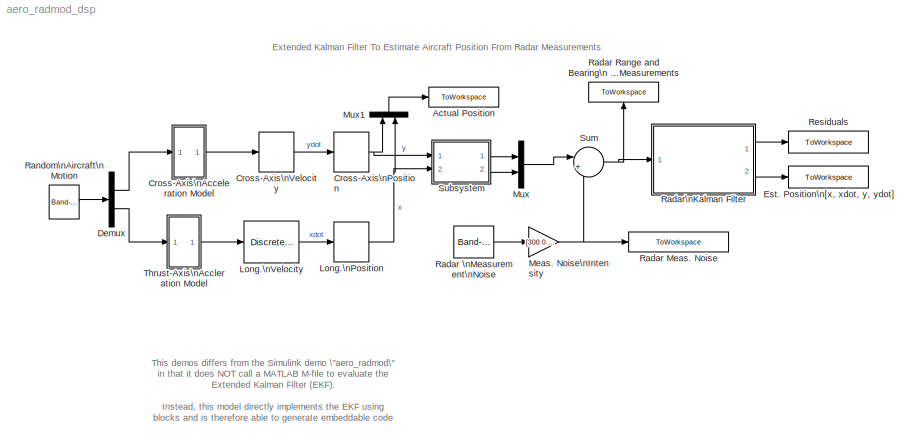
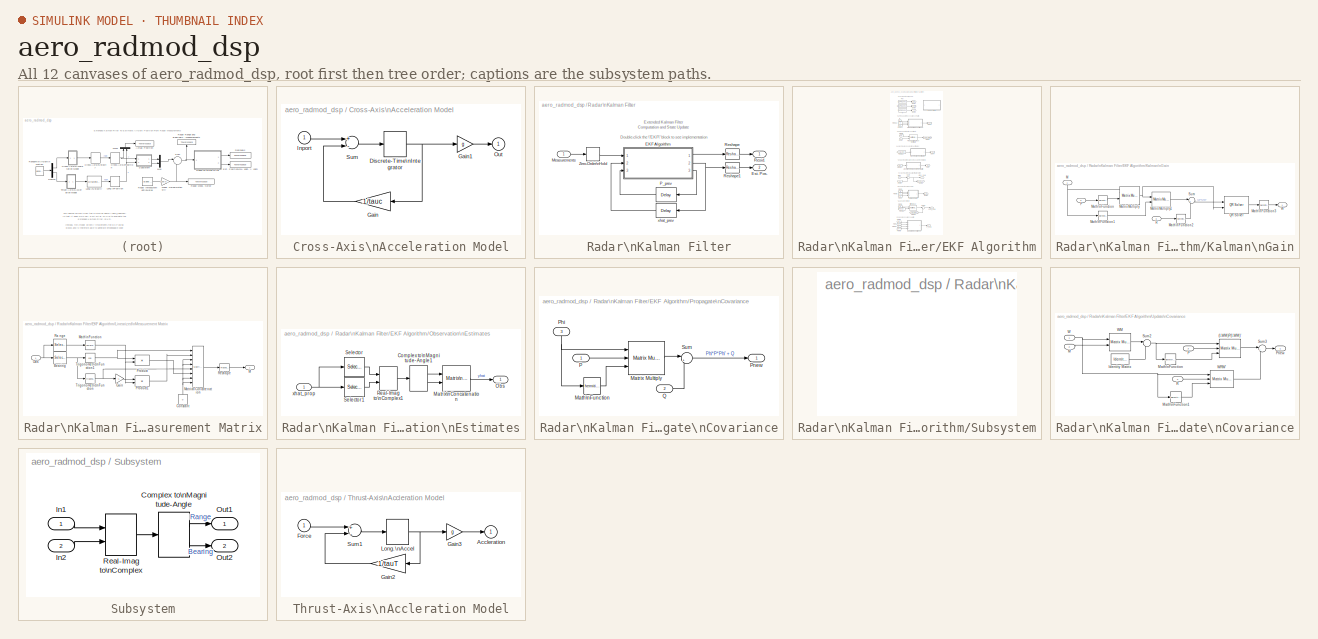
[diagram: thumbnail index - all 12 canvases of the model, root first then tree order]
MODEL aero_radmod_dsp
KIND model
CONFIG PreLoadFcn = aero_raddat;
CONFIG StopFcn = aero_radplot;
BLOCK [ToWorkspace] Actual Position
  MaxDataPoints = inf
  SaveFormat = Array
  VariableName = XYCoords
BLOCK [SubSystem] Cross-Axis\nAcceleration Model
  MinAlgLoopOccurrences = off
  Ports = [1, 1]
  PropExecContextAcrossSSBoundary = on
  RTWSystemCode = Auto
  ShowPortLabels = off
  TreatAsAtomicUnit = off
BLOCK [DiscreteIntegrator] Cross-Axis\nAcceleration Model/Discrete-Time\nIntegrator
  ExternalReset = none
  ICPrevOutput = DiscIntNeverNeededParam
  ICPrevScaledInput = DiscIntNeverNeededParam
  InitialConditionSource = internal
  IntegratorMethod = Integration: Forward Euler
  Ports = [1, 1]
  SampleTime = -1
BLOCK [Gain] Cross-Axis\nAcceleration Model/Gain
  Gain = 1/tauc
BLOCK [Gain] Cross-Axis\nAcceleration Model/Gain1
  Gain = g
BLOCK [Inport] Cross-Axis\nAcceleration Model/Inport
  IconDisplay = Port number
  LatchInput = off
BLOCK [Outport] Cross-Axis\nAcceleration Model/Out
  IconDisplay = Port number
  InitialOutput = 0
BLOCK [Sum] Cross-Axis\nAcceleration Model/Sum
  Inputs = +-
  Ports = [2, 1]
BLOCK [DiscreteIntegrator] Cross-Axis\nPosition
  ExternalReset = none
  ICPrevOutput = DiscIntNeverNeededParam
  ICPrevScaledInput = DiscIntNeverNeededParam
  InitialConditionSource = internal
  IntegratorMethod = Integration: Forward Euler
  Ports = [1, 1]
  SampleTime = -1
BLOCK [DiscreteIntegrator] Cross-Axis\nVelocity
  ExternalReset = none
  ICPrevOutput = DiscIntNeverNeededParam
  ICPrevScaledInput = DiscIntNeverNeededParam
  InitialConditionSource = internal
  IntegratorMethod = Integration: Forward Euler
  Ports = [1, 1]
  SampleTime = -1
BLOCK [Demux] Demux
  Outputs = 2
  Ports = [1, 2]
BLOCK [ToWorkspace] Est. Position\n[x, xdot, y, ydot]
  MaxDataPoints = inf
  SampleTime = -1
  SaveFormat = Array
  VariableName = X_hat
BLOCK [DiscreteIntegrator] Long.\nPosition
  ExternalReset = none
  ICPrevOutput = DiscIntNeverNeededParam
  ICPrevScaledInput = DiscIntNeverNeededParam
  InitialConditionSource = internal
  IntegratorMethod = Integration: Forward Euler
  Ports = [1, 1]
  SampleTime = -1
BLOCK [DiscreteIntegrator] Long.\nVelocity
  ExternalReset = none
  ICPrevOutput = DiscIntNeverNeededParam
  ICPrevScaledInput = DiscIntNeverNeededParam
  InitialCondition = Speed
  InitialConditionSource = internal
  IntegratorMethod = Integration: Forward Euler
  Ports = [1, 1]
  SampleTime = .1
BLOCK [Gain] Meas. Noise\nIntensity
  Gain = [300 0.01]
BLOCK [Mux] Mux
  DisplayOption = bar
  Inputs = 2
  Ports = [2, 1]
BLOCK [Mux] Mux1
  DisplayOption = bar
  Inputs = 2
  Ports = [2, 1]
BLOCK [ToWorkspace] Radar Meas. Noise
  MaxDataPoints = inf
  SaveFormat = Array
  VariableName = Measurement_noise
BLOCK [ToWorkspace] Radar Range and Bearing\n Angle Measurements
  MaxDataPoints = inf
  SampleTime = -1
  SaveFormat = Array
  VariableName = PolarCoords
BLOCK [Reference] Radar \nMeasurement\nNoise  REF=simulink/Sources/Band-Limited\nWhite Noise
  Cov = [1 1]
  Ports = [0, 1]
  ShowPortLabels = on
  SourceBlock = simulink/Sources/Band-Limited\nWhite Noise
  SourceType = Band-Limited White Noise.
  Ts = 0.1
  VectorParams1D = on
  seed = [52341 62341]
BLOCK [SubSystem] Radar\nKalman Filter
  MinAlgLoopOccurrences = off
  Ports = [1, 2]
  PropExecContextAcrossSSBoundary = on
  RTWSystemCode = Auto
  TreatAsAtomicUnit = off
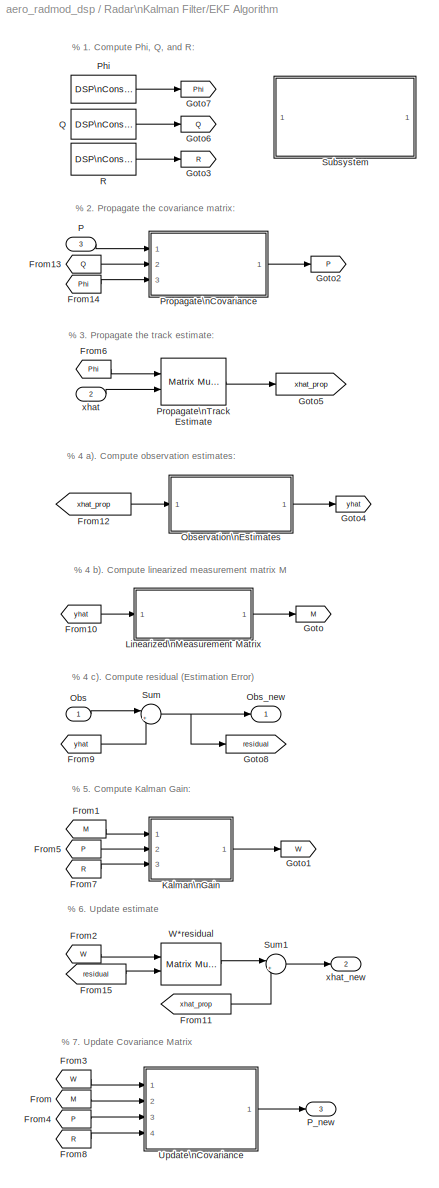
BLOCK [SubSystem] Radar\nKalman Filter/EKF Algorithm
  MaskDisplay = disp('EKF')
  MaskIconFrame = on
  MaskIconOpaque = off
  MaskIconRotate = none
  MaskIconUnits = autoscale
  MinAlgLoopOccurrences = off
  Ports = [3, 3]
  PropExecContextAcrossSSBoundary = on
  RTWSystemCode = Auto
  TreatAsAtomicUnit = off
BLOCK [From] Radar\nKalman Filter/EKF Algorithm/From
  CloseFcn = tagdialog Close
  DialogController = Simulink.DDGSource
  GotoTag = M
BLOCK [From] Radar\nKalman Filter/EKF Algorithm/From1
  CloseFcn = tagdialog Close
  DialogController = Simulink.DDGSource
  GotoTag = M
BLOCK [From] Radar\nKalman Filter/EKF Algorithm/From10
  CloseFcn = tagdialog Close
  DialogController = Simulink.DDGSource
  GotoTag = yhat
BLOCK [From] Radar\nKalman Filter/EKF Algorithm/From11
  CloseFcn = tagdialog Close
  DialogController = Simulink.DDGSource
  GotoTag = xhat_prop
BLOCK [From] Radar\nKalman Filter/EKF Algorithm/From12
  CloseFcn = tagdialog Close
  DialogController = Simulink.DDGSource
  GotoTag = xhat_prop
BLOCK [From] Radar\nKalman Filter/EKF Algorithm/From13
  CloseFcn = tagdialog Close
  DialogController = Simulink.DDGSource
  GotoTag = Q
BLOCK [From] Radar\nKalman Filter/EKF Algorithm/From14
  CloseFcn = tagdialog Close
  DialogController = Simulink.DDGSource
  GotoTag = Phi
BLOCK [From] Radar\nKalman Filter/EKF Algorithm/From15
  CloseFcn = tagdialog Close
  DialogController = Simulink.DDGSource
  GotoTag = residual
BLOCK [From] Radar\nKalman Filter/EKF Algorithm/From2
  CloseFcn = tagdialog Close
  DialogController = Simulink.DDGSource
  GotoTag = W
BLOCK [From] Radar\nKalman Filter/EKF Algorithm/From3
  CloseFcn = tagdialog Close
  DialogController = Simulink.DDGSource
  GotoTag = W
BLOCK [From] Radar\nKalman Filter/EKF Algorithm/From4
  CloseFcn = tagdialog Close
  DialogController = Simulink.DDGSource
  GotoTag = P
BLOCK [From] Radar\nKalman Filter/EKF Algorithm/From5
  CloseFcn = tagdialog Close
  DialogController = Simulink.DDGSource
  GotoTag = P
BLOCK [From] Radar\nKalman Filter/EKF Algorithm/From6
  CloseFcn = tagdialog Close
  DialogController = Simulink.DDGSource
  GotoTag = Phi
BLOCK [From] Radar\nKalman Filter/EKF Algorithm/From7
  CloseFcn = tagdialog Close
  DialogController = Simulink.DDGSource
  GotoTag = R
BLOCK [From] Radar\nKalman Filter/EKF Algorithm/From8
  CloseFcn = tagdialog Close
  DialogController = Simulink.DDGSource
  GotoTag = R
BLOCK [From] Radar\nKalman Filter/EKF Algorithm/From9
  CloseFcn = tagdialog Close
  DialogController = Simulink.DDGSource
  GotoTag = yhat
BLOCK [Goto] Radar\nKalman Filter/EKF Algorithm/Goto
  DialogController = Simulink.DDGSource
  GotoTag = M
  TagVisibility = local
BLOCK [Goto] Radar\nKalman Filter/EKF Algorithm/Goto1
  DialogController = Simulink.DDGSource
  GotoTag = W
  TagVisibility = local
BLOCK [Goto] Radar\nKalman Filter/EKF Algorithm/Goto2
  DialogController = Simulink.DDGSource
  GotoTag = P
  TagVisibility = local
BLOCK [Goto] Radar\nKalman Filter/EKF Algorithm/Goto3
  DialogController = Simulink.DDGSource
  GotoTag = R
  TagVisibility = local
BLOCK [Goto] Radar\nKalman Filter/EKF Algorithm/Goto4
  DialogController = Simulink.DDGSource
  GotoTag = yhat
  TagVisibility = local
BLOCK [Goto] Radar\nKalman Filter/EKF Algorithm/Goto5
  DialogController = Simulink.DDGSource
  GotoTag = xhat_prop
  TagVisibility = global
BLOCK [Goto] Radar\nKalman Filter/EKF Algorithm/Goto6
  DialogController = Simulink.DDGSource
  GotoTag = Q
  TagVisibility = local
BLOCK [Goto] Radar\nKalman Filter/EKF Algorithm/Goto7
  DialogController = Simulink.DDGSource
  GotoTag = Phi
  TagVisibility = local
BLOCK [Goto] Radar\nKalman Filter/EKF Algorithm/Goto8
  DialogController = Simulink.DDGSource
  GotoTag = residual
  TagVisibility = local
BLOCK [SubSystem] Radar\nKalman Filter/EKF Algorithm/Kalman\nGain
  MaskDisplay = disp('Kalman\\nGain')\n
  MaskIconFrame = on
  MaskIconOpaque = off
  MaskIconRotate = none
  MaskIconUnits = autoscale
  MinAlgLoopOccurrences = off
  Ports = [3, 1]
  PropExecContextAcrossSSBoundary = on
  RTWSystemCode = Auto
  TreatAsAtomicUnit = off
BLOCK [Inport] Radar\nKalman Filter/EKF Algorithm/Kalman\nGain/M
  IconDisplay = Port number
  LatchInput = off
BLOCK [Math] Radar\nKalman Filter/EKF Algorithm/Kalman\nGain/Math\nFunction
  Operator = hermitian
  Ports = [1, 1]
BLOCK [Math] Radar\nKalman Filter/EKF Algorithm/Kalman\nGain/Math\nFunction1
  Operator = hermitian
  Ports = [1, 1]
BLOCK [Math] Radar\nKalman Filter/EKF Algorithm/Kalman\nGain/Math\nFunction2
  Operator = hermitian
  Ports = [1, 1]
BLOCK [Math] Radar\nKalman Filter/EKF Algorithm/Kalman\nGain/Math\nFunction3
  Operator = hermitian
  Ports = [1, 1]
BLOCK [Reference] Radar\nKalman Filter/EKF Algorithm/Kalman\nGain/Matrix Multiply  REF=dspmtrx3/Matrix Multiply
  OptimizationLevel = None
  Ports = [2, 1]
  SourceBlock = dspmtrx3/Matrix Multiply
  SourceType = Matrix Multiply
  numInputPorts = 2
BLOCK [Reference] Radar\nKalman Filter/EKF Algorithm/Kalman\nGain/Matrix Multiply1  REF=dspmtrx3/Matrix Multiply
  OptimizationLevel = None
  Ports = [2, 1]
  SourceBlock = dspmtrx3/Matrix Multiply
  SourceType = Matrix Multiply
  numInputPorts = 2
BLOCK [Inport] Radar\nKalman Filter/EKF Algorithm/Kalman\nGain/P
  IconDisplay = Port number
  LatchInput = off
  Port = 2
BLOCK [Reference] Radar\nKalman Filter/EKF Algorithm/Kalman\nGain/QR Solver  REF=dspsolvers/QR Solver
  Ports = [2, 1]
  SourceBlock = dspsolvers/QR Solver
  SourceType = QR Solver
BLOCK [Inport] Radar\nKalman Filter/EKF Algorithm/Kalman\nGain/R
  IconDisplay = Port number
  LatchInput = off
  Port = 3
BLOCK [Sum] Radar\nKalman Filter/EKF Algorithm/Kalman\nGain/Sum
  IconShape = round
  InputSameDT = off
  Inputs = |++
  OutDataTypeMode = Inherit via internal rule
  Ports = [2, 1]
BLOCK [Outport] Radar\nKalman Filter/EKF Algorithm/Kalman\nGain/W
  IconDisplay = Port number
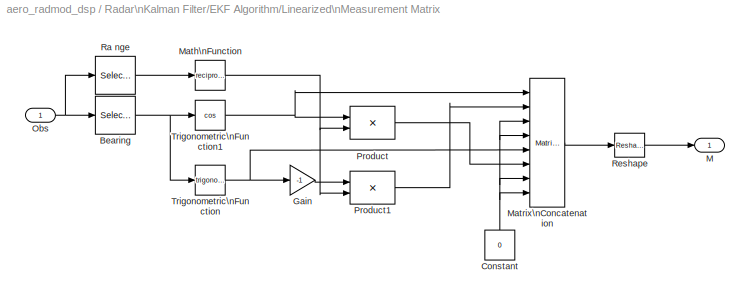
BLOCK [SubSystem] Radar\nKalman Filter/EKF Algorithm/Linearized\nMeasurement Matrix
  MaskDisplay = disp('Linearized\\nMeasurement\\nMatrix')
  MaskIconFrame = on
  MaskIconOpaque = off
  MaskIconRotate = none
  MaskIconUnits = autoscale
  MinAlgLoopOccurrences = off
  Ports = [1, 1]
  PropExecContextAcrossSSBoundary = on
  RTWSystemCode = Auto
  TreatAsAtomicUnit = off
BLOCK [Selector] Radar\nKalman Filter/EKF Algorithm/Linearized\nMeasurement Matrix/Bearing
  Elements = 2
  InputPortWidth = 2
  Ports = [1, 1]
BLOCK [Constant] Radar\nKalman Filter/EKF Algorithm/Linearized\nMeasurement Matrix/Constant
  OutDataTypeMode = Inherit via back propagation
  Value = 0
BLOCK [Gain] Radar\nKalman Filter/EKF Algorithm/Linearized\nMeasurement Matrix/Gain
  Gain = -1
BLOCK [Outport] Radar\nKalman Filter/EKF Algorithm/Linearized\nMeasurement Matrix/M
  IconDisplay = Port number
BLOCK [Math] Radar\nKalman Filter/EKF Algorithm/Linearized\nMeasurement Matrix/Math\nFunction
  Operator = reciprocal
  Ports = [1, 1]
BLOCK [Reference] Radar\nKalman Filter/EKF Algorithm/Linearized\nMeasurement Matrix/Matrix\nConcatenation  REF=simulink/Math\nOperations/Matrix\nConcatenation
  Ports = [8, 1]
  SourceBlock = simulink/Math\nOperations/Matrix\nConcatenation
  SourceType = Matrix Concatenation
  catMethod = Vertical
  numInports = 8
BLOCK [Inport] Radar\nKalman Filter/EKF Algorithm/Linearized\nMeasurement Matrix/Obs
  IconDisplay = Port number
  LatchInput = off
BLOCK [Product] Radar\nKalman Filter/EKF Algorithm/Linearized\nMeasurement Matrix/Product
  InputSameDT = off
  Ports = [2, 1]
  RndMeth = Floor
BLOCK [Product] Radar\nKalman Filter/EKF Algorithm/Linearized\nMeasurement Matrix/Product1
  InputSameDT = off
  Ports = [2, 1]
  RndMeth = Floor
BLOCK [Selector] Radar\nKalman Filter/EKF Algorithm/Linearized\nMeasurement Matrix/Ra nge
  InputPortWidth = 2
  Ports = [1, 1]
BLOCK [Reference] Radar\nKalman Filter/EKF Algorithm/Linearized\nMeasurement Matrix/Reshape  REF=simulink/Math\nOperations/Reshape
  OutputDimensionality = Customize
  OutputDimensions = [2,4]
  Ports = [1, 1]
  SourceBlock = simulink/Math\nOperations/Reshape
  SourceType = Reshape
BLOCK [Trigonometry] Radar\nKalman Filter/EKF Algorithm/Linearized\nMeasurement Matrix/Trigonometric\nFunction
  Ports = [1, 1]
BLOCK [Trigonometry] Radar\nKalman Filter/EKF Algorithm/Linearized\nMeasurement Matrix/Trigonometric\nFunction1
  Operator = cos
  Ports = [1, 1]
BLOCK [Inport] Radar\nKalman Filter/EKF Algorithm/Obs
  IconDisplay = Port number
  LatchInput = off
BLOCK [Outport] Radar\nKalman Filter/EKF Algorithm/Obs_new
  IconDisplay = Port number
BLOCK [SubSystem] Radar\nKalman Filter/EKF Algorithm/Observation\nEstimates
  MaskDisplay = disp('Observation\\n\\nEstimates')
  MaskIconFrame = on
  MaskIconOpaque = off
  MaskIconRotate = none
  MaskIconUnits = autoscale
  MinAlgLoopOccurrences = off
  Ports = [1, 1]
  PropExecContextAcrossSSBoundary = on
  RTWSystemCode = Auto
  TreatAsAtomicUnit = off
BLOCK [ComplexToMagnitudeAngle] Radar\nKalman Filter/EKF Algorithm/Observation\nEstimates/Complex to\nMagnitude-Angle1
  Output = Magnitude and angle
  Ports = [1, 2]
BLOCK [Reference] Radar\nKalman Filter/EKF Algorithm/Observation\nEstimates/Matrix\nConcatenation  REF=simulink/Math\nOperations/Matrix\nConcatenation
  Ports = [2, 1]
  SourceBlock = simulink/Math\nOperations/Matrix\nConcatenation
  SourceType = Matrix Concatenation
  catMethod = Vertical
  numInports = 2
BLOCK [Outport] Radar\nKalman Filter/EKF Algorithm/Observation\nEstimates/Obs
  IconDisplay = Port number
BLOCK [RealImagToComplex] Radar\nKalman Filter/EKF Algorithm/Observation\nEstimates/Real-Imag to\nComplex1
  Input = Real and imag
  Ports = [2, 1]
BLOCK [Selector] Radar\nKalman Filter/EKF Algorithm/Observation\nEstimates/Selector
  InputPortWidth = 4
  Ports = [1, 1]
BLOCK [Selector] Radar\nKalman Filter/EKF Algorithm/Observation\nEstimates/Selector1
  Elements = 3
  InputPortWidth = 4
  Ports = [1, 1]
BLOCK [Inport] Radar\nKalman Filter/EKF Algorithm/Observation\nEstimates/xhat_prop
  IconDisplay = Port number
  LatchInput = off
BLOCK [Inport] Radar\nKalman Filter/EKF Algorithm/P
  IconDisplay = Port number
  LatchInput = off
  Port = 3
BLOCK [Outport] Radar\nKalman Filter/EKF Algorithm/P_new
  IconDisplay = Port number
  Port = 3
BLOCK [Reference] Radar\nKalman Filter/EKF Algorithm/Phi  REF=dspsrcs4/DSP\nConstant
  FramebasedOutput = -inf
  InterpretAs1D = -inf
  Ports = [0, 1]
  SampleMode = Discrete
  SourceBlock = dspsrcs4/DSP\nConstant
  SourceType = DSP Constant
  Ts = -inf
  Value = single([1 deltat 0 0; 0 1 0 0 ; 0 0 1 deltat; 0 0 0 1])
  additionalParams = on
  continuousOutput = Sample-based
  dataType = Inherit via back propagation
  discreteOutput = Sample-based
  fracBitsMode = Best precision
  framePeriod = 2
  numFracBits = 15
  sampTime = deltat
  udDataType = sfix(16)
  wordLen = 16
BLOCK [SubSystem] Radar\nKalman Filter/EKF Algorithm/Propagate\nCovariance
  MaskDisplay = disp('Propagate\\nCovariance')
  MaskIconFrame = on
  MaskIconOpaque = off
  MaskIconRotate = none
  MaskIconUnits = autoscale
  MinAlgLoopOccurrences = off
  Ports = [3, 1]
  PropExecContextAcrossSSBoundary = on
  RTWSystemCode = Auto
  TreatAsAtomicUnit = off
BLOCK [Math] Radar\nKalman Filter/EKF Algorithm/Propagate\nCovariance/Math\nFunction
  Operator = hermitian
  Ports = [1, 1]
BLOCK [Reference] Radar\nKalman Filter/EKF Algorithm/Propagate\nCovariance/Matrix Multiply  REF=dspmtrx3/Matrix Multiply
  OptimizationLevel = None
  Ports = [3, 1]
  SourceBlock = dspmtrx3/Matrix Multiply
  SourceType = Matrix Multiply
  numInputPorts = 3
BLOCK [Inport] Radar\nKalman Filter/EKF Algorithm/Propagate\nCovariance/P
  IconDisplay = Port number
  LatchInput = off
BLOCK [Inport] Radar\nKalman Filter/EKF Algorithm/Propagate\nCovariance/Phi
  IconDisplay = Port number
  LatchInput = off
  Port = 3
BLOCK [Outport] Radar\nKalman Filter/EKF Algorithm/Propagate\nCovariance/Pnew
  IconDisplay = Port number
BLOCK [Inport] Radar\nKalman Filter/EKF Algorithm/Propagate\nCovariance/Q
  IconDisplay = Port number
  LatchInput = off
  Port = 2
BLOCK [Sum] Radar\nKalman Filter/EKF Algorithm/Propagate\nCovariance/Sum
  IconShape = round
  InputSameDT = off
  Inputs = |++
  OutDataTypeMode = Inherit via internal rule
  Ports = [2, 1]
BLOCK [Reference] Radar\nKalman Filter/EKF Algorithm/Propagate\nTrack Estimate  REF=dspmtrx3/Matrix Multiply
  OptimizationLevel = None
  Ports = [2, 1]
  SourceBlock = dspmtrx3/Matrix Multiply
  SourceType = Matrix Multiply
  numInputPorts = 2
BLOCK [Reference] Radar\nKalman Filter/EKF Algorithm/Q  REF=dspsrcs4/DSP\nConstant
  FramebasedOutput = -inf
  InterpretAs1D = -inf
  Ports = [0, 1]
  SampleMode = Discrete
  SourceBlock = dspsrcs4/DSP\nConstant
  SourceType = DSP Constant
  Ts = -inf
  Value = single(diag([0 .005 0 .005]))
  additionalParams = on
  continuousOutput = Sample-based
  dataType = Inherit via back propagation
  discreteOutput = Sample-based
  fracBitsMode = Best precision
  framePeriod = 2
  numFracBits = 15
  sampTime = deltat
  udDataType = sfix(16)
  wordLen = 16
BLOCK [Reference] Radar\nKalman Filter/EKF Algorithm/R  REF=dspsrcs4/DSP\nConstant
  FramebasedOutput = -inf
  InterpretAs1D = -inf
  Ports = [0, 1]
  SampleMode = Discrete
  SourceBlock = dspsrcs4/DSP\nConstant
  SourceType = DSP Constant
  Ts = -inf
  Value = single(diag([300^2 0.001^2]))
  additionalParams = on
  continuousOutput = Sample-based
  dataType = Inherit via back propagation
  discreteOutput = Sample-based
  fracBitsMode = Best precision
  framePeriod = 2
  numFracBits = 15
  sampTime = deltat
  udDataType = sfix(16)
  wordLen = 16
BLOCK [SubSystem] Radar\nKalman Filter/EKF Algorithm/Subsystem
  MaskDisplay = disp('Implementation of\\n ...\nExtended Kalman Filter\\n ...\nclosely follows M-file\\n ...\n\"aero_extkalman.m\"\\n\\n ...\nClick here to view M-file.');
  MaskIconFrame = on
  MaskIconOpaque = on
  MaskIconRotate = none
  MaskIconUnits = autoscale
  MinAlgLoopOccurrences = off
  OpenFcn = edit aero_extkalman
  Ports = []
  PropExecContextAcrossSSBoundary = on
  RTWSystemCode = Auto
  TreatAsAtomicUnit = off
BLOCK [Sum] Radar\nKalman Filter/EKF Algorithm/Sum
  IconShape = round
  InputSameDT = off
  Inputs = |+-
  OutDataTypeMode = Inherit via internal rule
  Ports = [2, 1]
BLOCK [Sum] Radar\nKalman Filter/EKF Algorithm/Sum1
  IconShape = round
  InputSameDT = off
  Inputs = |++
  OutDataTypeMode = Inherit via internal rule
  Ports = [2, 1]
BLOCK [SubSystem] Radar\nKalman Filter/EKF Algorithm/Update\nCovariance
  MaskDisplay = disp('Update\\nCovariance')
  MaskIconFrame = on
  MaskIconOpaque = off
  MaskIconRotate = none
  MaskIconUnits = autoscale
  MinAlgLoopOccurrences = off
  Ports = [4, 1]
  PropExecContextAcrossSSBoundary = on
  RTWSystemCode = Auto
  TreatAsAtomicUnit = off
BLOCK [Reference] Radar\nKalman Filter/EKF Algorithm/Update\nCovariance/(I-WM)P(I-WM)'  REF=dspmtrx3/Matrix Multiply
  OptimizationLevel = None
  Ports = [3, 1]
  SourceBlock = dspmtrx3/Matrix Multiply
  SourceType = Matrix Multiply
  numInputPorts = 3
BLOCK [Reference] Radar\nKalman Filter/EKF Algorithm/Update\nCovariance/Identity Matrix  REF=dspmtrx3/Identity Matrix
  Inherit = off
  N = 4
  Ports = [0, 1]
  SourceBlock = dspmtrx3/Identity Matrix
  SourceType = Identity Matrix
  Ts = deltat
  additionalParams = on
  dataType = Inherit via back propagation
  fracBitsMode = Best precision
  numFracBits = 15
  udDataType = sfix(16)
  wordLen = 16
BLOCK [Inport] Radar\nKalman Filter/EKF Algorithm/Update\nCovariance/M
  IconDisplay = Port number
  LatchInput = off
  Port = 2
BLOCK [Math] Radar\nKalman Filter/EKF Algorithm/Update\nCovariance/Math\nFunction
  Operator = hermitian
  Ports = [1, 1]
BLOCK [Math] Radar\nKalman Filter/EKF Algorithm/Update\nCovariance/Math\nFunction1
  Operator = hermitian
  Ports = [1, 1]
BLOCK [Inport] Radar\nKalman Filter/EKF Algorithm/Update\nCovariance/P
  IconDisplay = Port number
  LatchInput = off
  Port = 3
BLOCK [Outport] Radar\nKalman Filter/EKF Algorithm/Update\nCovariance/Pnew
  IconDisplay = Port number
BLOCK [Inport] Radar\nKalman Filter/EKF Algorithm/Update\nCovariance/R
  IconDisplay = Port number
  LatchInput = off
  Port = 4
BLOCK [Sum] Radar\nKalman Filter/EKF Algorithm/Update\nCovariance/Sum2
  IconShape = round
  InputSameDT = off
  Inputs = |-+
  OutDataTypeMode = Inherit via internal rule
  Ports = [2, 1]
BLOCK [Sum] Radar\nKalman Filter/EKF Algorithm/Update\nCovariance/Sum3
  IconShape = round
  InputSameDT = off
  Inputs = |++
  OutDataTypeMode = Inherit via internal rule
  Ports = [2, 1]
BLOCK [Inport] Radar\nKalman Filter/EKF Algorithm/Update\nCovariance/W
  IconDisplay = Port number
  LatchInput = off
BLOCK [Reference] Radar\nKalman Filter/EKF Algorithm/Update\nCovariance/WM  REF=dspmtrx3/Matrix Multiply
  OptimizationLevel = None
  Ports = [2, 1]
  SourceBlock = dspmtrx3/Matrix Multiply
  SourceType = Matrix Multiply
  numInputPorts = 2
BLOCK [Reference] Radar\nKalman Filter/EKF Algorithm/Update\nCovariance/WRW'  REF=dspmtrx3/Matrix Multiply
  OptimizationLevel = None
  Ports = [3, 1]
  SourceBlock = dspmtrx3/Matrix Multiply
  SourceType = Matrix Multiply
  numInputPorts = 3
BLOCK [Reference] Radar\nKalman Filter/EKF Algorithm/W*residual  REF=dspmtrx3/Matrix Multiply
  OptimizationLevel = None
  Ports = [2, 1]
  SourceBlock = dspmtrx3/Matrix Multiply
  SourceType = Matrix Multiply
  numInputPorts = 2
BLOCK [Inport] Radar\nKalman Filter/EKF Algorithm/xhat
  IconDisplay = Port number
  LatchInput = off
  Port = 2
  PortDimensions = [4 1]
BLOCK [Outport] Radar\nKalman Filter/EKF Algorithm/xhat_new
  IconDisplay = Port number
  Port = 2
BLOCK [Outport] Radar\nKalman Filter/Est. Pos.
  IconDisplay = Port number
  InitialOutput = 0
  Port = 2
BLOCK [Inport] Radar\nKalman Filter/Measurements
  IconDisplay = Port number
  LatchInput = off
BLOCK [Reference] Radar\nKalman Filter/P_prev  REF=dspsigops/Delay
  Ports = [1, 1]
  SourceBlock = dspsigops/Delay
  SourceType = Delay
  delay = 1
  dif_ic_for_ch = off
  dif_ic_for_dly = off
  dly_unit = Samples
  ic = 0
  ic_detail = off
  reset_popup = None
BLOCK [Reference] Radar\nKalman Filter/Reshape  REF=simulink/Math\nOperations/Reshape
  OutputDimensionality = 1-D array
  OutputDimensions = [1,1]
  Ports = [1, 1]
  SourceBlock = simulink/Math\nOperations/Reshape
  SourceType = Reshape
BLOCK [Reference] Radar\nKalman Filter/Reshape1  REF=simulink/Math\nOperations/Reshape
  OutputDimensionality = 1-D array
  OutputDimensions = [1,1]
  Ports = [1, 1]
  SourceBlock = simulink/Math\nOperations/Reshape
  SourceType = Reshape
BLOCK [Outport] Radar\nKalman Filter/Resid.
  IconDisplay = Port number
  InitialOutput = 0
BLOCK [ZeroOrderHold] Radar\nKalman Filter/Zero-Order\nHold
  SampleTime = deltat
BLOCK [Reference] Radar\nKalman Filter/xhat_prev  REF=dspsigops/Delay
  Ports = [1, 1]
  SourceBlock = dspsigops/Delay
  SourceType = Delay
  delay = 1
  dif_ic_for_ch = on
  dif_ic_for_dly = off
  dly_unit = Samples
  ic = [0.001, 0.01, 0.001, 400]
  ic_detail = on
  reset_popup = None
BLOCK [Reference] Random\nAircraft\nMotion  REF=simulink/Sources/Band-Limited\nWhite Noise
  Cov = [0.001 .001]
  Ports = [0, 1]
  ShowPortLabels = on
  SourceBlock = simulink/Sources/Band-Limited\nWhite Noise
  SourceType = Band-Limited White Noise.
  Ts = 0.1
  VectorParams1D = on
  seed = [58413 74925]
BLOCK [ToWorkspace] Residuals
  MaxDataPoints = inf
  SampleTime = -1
  SaveFormat = Array
  VariableName = residual
BLOCK [SubSystem] Subsystem
  MaskDisplay = disp('Cartesian\\nto Polar')\n
  MaskIconFrame = on
  MaskIconOpaque = on
  MaskIconRotate = none
  MaskIconUnits = autoscale
  MinAlgLoopOccurrences = off
  Ports = [2, 2]
  PropExecContextAcrossSSBoundary = on
  RTWSystemCode = Auto
  TreatAsAtomicUnit = off
BLOCK [ComplexToMagnitudeAngle] Subsystem/Complex to\nMagnitude-Angle
  Output = Magnitude and angle
  Ports = [1, 2]
BLOCK [Inport] Subsystem/In1
  IconDisplay = Port number
  LatchInput = off
BLOCK [Inport] Subsystem/In2
  IconDisplay = Port number
  LatchInput = off
  Port = 2
BLOCK [Outport] Subsystem/Out1
  IconDisplay = Port number
BLOCK [Outport] Subsystem/Out2
  IconDisplay = Port number
  Port = 2
BLOCK [RealImagToComplex] Subsystem/Real-Imag to\nComplex
  Input = Real and imag
  Ports = [2, 1]
BLOCK [Sum] Sum
  IconShape = round
  Inputs = |++
  Ports = [2, 1]
BLOCK [SubSystem] Thrust-Axis\nAccleration Model
  MinAlgLoopOccurrences = off
  Ports = [1, 1]
  PropExecContextAcrossSSBoundary = on
  RTWSystemCode = Auto
  ShowPortLabels = off
  TreatAsAtomicUnit = off
BLOCK [Outport] Thrust-Axis\nAccleration Model/Accleration
  IconDisplay = Port number
  InitialOutput = 0
BLOCK [Inport] Thrust-Axis\nAccleration Model/Force
  IconDisplay = Port number
  LatchInput = off
BLOCK [Gain] Thrust-Axis\nAccleration Model/Gain2
  Gain = 1/tauT
BLOCK [Gain] Thrust-Axis\nAccleration Model/Gain3
  Gain = g
BLOCK [DiscreteIntegrator] Thrust-Axis\nAccleration Model/Long.\nAccel
  ExternalReset = none
  ICPrevOutput = DiscIntNeverNeededParam
  ICPrevScaledInput = DiscIntNeverNeededParam
  InitialConditionSource = internal
  IntegratorMethod = Integration: Forward Euler
  Ports = [1, 1]
  SampleTime = -1
BLOCK [Sum] Thrust-Axis\nAccleration Model/Sum1
  Inputs = +-
  Ports = [2, 1]
ANNOTATION (root): Extended Kalman Filter To Estimate Aircraft Position From Radar Measurements
ANNOTATION (root): This demos differs from the Simulink demo \"aero_radmod\"\nin that it does NOT call a MATLAB M-file to evaluate the\nExtended Kalman Filter (EKF).\n\nInstead, this model directly implements the EKF using\nblocks and is therefore able to generate embeddable code\nfor the entire model when used with Real-Time Workshop.
ANNOTATION Radar\nKalman Filter: Extended Kalman Filter\nComputation and State Update\n\nDouble-click the \"EKF\" block to see implementation
ANNOTATION Radar\nKalman Filter/EKF Algorithm: % 1. Compute Phi, Q, and R:
ANNOTATION Radar\nKalman Filter/EKF Algorithm: % 2. Propagate the covariance matrix:
ANNOTATION Radar\nKalman Filter/EKF Algorithm: % 3. Propagate the track estimate:
ANNOTATION Radar\nKalman Filter/EKF Algorithm: % 4 a). Compute observation estimates:
ANNOTATION Radar\nKalman Filter/EKF Algorithm: % 4 b). Compute linearized measurement matrix M
ANNOTATION Radar\nKalman Filter/EKF Algorithm: % 4 c). Compute residual (Estimation Error)
ANNOTATION Radar\nKalman Filter/EKF Algorithm: % 5. Compute Kalman Gain:
ANNOTATION Radar\nKalman Filter/EKF Algorithm: % 6. Update estimate
ANNOTATION Radar\nKalman Filter/EKF Algorithm: % 7. Update Covariance Matrix
NET Cross-Axis\nAcceleration Model/Discrete-Time\nIntegrator:1 -> Cross-Axis\nAcceleration Model/Gain1:1, Cross-Axis\nAcceleration Model/Gain:1
LINE Cross-Axis\nAcceleration Model/Gain1:1 -> Cross-Axis\nAcceleration Model/Out:1
LINE Cross-Axis\nAcceleration Model/Gain:1 -> Cross-Axis\nAcceleration Model/Sum:2
LINE Cross-Axis\nAcceleration Model/Inport:1 -> Cross-Axis\nAcceleration Model/Sum:1
LINE Cross-Axis\nAcceleration Model/Sum:1 -> Cross-Axis\nAcceleration Model/Discrete-Time\nIntegrator:1
LINE Cross-Axis\nAcceleration Model:1 -> Cross-Axis\nVelocity:1
NET Cross-Axis\nPosition:1 -> Mux1:1, Subsystem:1
LINE Cross-Axis\nVelocity:1 -> Cross-Axis\nPosition:1
LINE Demux:1 -> Cross-Axis\nAcceleration Model:1
LINE Demux:2 -> Thrust-Axis\nAccleration Model:1
NET Long.\nPosition:1 -> Mux1:2, Subsystem:2
LINE Long.\nVelocity:1 -> Long.\nPosition:1
NET Meas. Noise\nIntensity:1 -> Radar Meas. Noise:1, Sum:2
LINE Mux1:1 -> Actual Position:1
LINE Mux:1 -> Sum:1
LINE Radar \nMeasurement\nNoise:1 -> Meas. Noise\nIntensity:1
LINE Radar\nKalman Filter/EKF Algorithm/From10:1 -> Radar\nKalman Filter/EKF Algorithm/Linearized\nMeasurement Matrix:1
LINE Radar\nKalman Filter/EKF Algorithm/From11:1 -> Radar\nKalman Filter/EKF Algorithm/Sum1:2
LINE Radar\nKalman Filter/EKF Algorithm/From12:1 -> Radar\nKalman Filter/EKF Algorithm/Observation\nEstimates:1
LINE Radar\nKalman Filter/EKF Algorithm/From13:1 -> Radar\nKalman Filter/EKF Algorithm/Propagate\nCovariance:2
LINE Radar\nKalman Filter/EKF Algorithm/From14:1 -> Radar\nKalman Filter/EKF Algorithm/Propagate\nCovariance:3
LINE Radar\nKalman Filter/EKF Algorithm/From15:1 -> Radar\nKalman Filter/EKF Algorithm/W*residual:2
LINE Radar\nKalman Filter/EKF Algorithm/From1:1 -> Radar\nKalman Filter/EKF Algorithm/Kalman\nGain:1
LINE Radar\nKalman Filter/EKF Algorithm/From2:1 -> Radar\nKalman Filter/EKF Algorithm/W*residual:1
LINE Radar\nKalman Filter/EKF Algorithm/From3:1 -> Radar\nKalman Filter/EKF Algorithm/Update\nCovariance:1
LINE Radar\nKalman Filter/EKF Algorithm/From4:1 -> Radar\nKalman Filter/EKF Algorithm/Update\nCovariance:3
LINE Radar\nKalman Filter/EKF Algorithm/From5:1 -> Radar\nKalman Filter/EKF Algorithm/Kalman\nGain:2
LINE Radar\nKalman Filter/EKF Algorithm/From6:1 -> Radar\nKalman Filter/EKF Algorithm/Propagate\nTrack Estimate:1
LINE Radar\nKalman Filter/EKF Algorithm/From7:1 -> Radar\nKalman Filter/EKF Algorithm/Kalman\nGain:3
LINE Radar\nKalman Filter/EKF Algorithm/From8:1 -> Radar\nKalman Filter/EKF Algorithm/Update\nCovariance:4
LINE Radar\nKalman Filter/EKF Algorithm/From9:1 -> Radar\nKalman Filter/EKF Algorithm/Sum:2
LINE Radar\nKalman Filter/EKF Algorithm/From:1 -> Radar\nKalman Filter/EKF Algorithm/Update\nCovariance:2
NET Radar\nKalman Filter/EKF Algorithm/Kalman\nGain/M:1 -> Radar\nKalman Filter/EKF Algorithm/Kalman\nGain/Math\nFunction1:1, Radar\nKalman Filter/EKF Algorithm/Kalman\nGain/Matrix Multiply:1
LINE Radar\nKalman Filter/EKF Algorithm/Kalman\nGain/Math\nFunction1:1 -> Radar\nKalman Filter/EKF Algorithm/Kalman\nGain/Matrix Multiply1:2
LINE Radar\nKalman Filter/EKF Algorithm/Kalman\nGain/Math\nFunction2:1 -> Radar\nKalman Filter/EKF Algorithm/Kalman\nGain/Sum:2
LINE Radar\nKalman Filter/EKF Algorithm/Kalman\nGain/Math\nFunction3:1 -> Radar\nKalman Filter/EKF Algorithm/Kalman\nGain/W:1
LINE Radar\nKalman Filter/EKF Algorithm/Kalman\nGain/Math\nFunction:1 -> Radar\nKalman Filter/EKF Algorithm/Kalman\nGain/Matrix Multiply:2
LINE Radar\nKalman Filter/EKF Algorithm/Kalman\nGain/Matrix Multiply1:1 -> Radar\nKalman Filter/EKF Algorithm/Kalman\nGain/Sum:1
NET Radar\nKalman Filter/EKF Algorithm/Kalman\nGain/Matrix Multiply:1 -> Radar\nKalman Filter/EKF Algorithm/Kalman\nGain/Matrix Multiply1:1, Radar\nKalman Filter/EKF Algorithm/Kalman\nGain/QR Solver:2
LINE Radar\nKalman Filter/EKF Algorithm/Kalman\nGain/P:1 -> Radar\nKalman Filter/EKF Algorithm/Kalman\nGain/Math\nFunction:1
LINE Radar\nKalman Filter/EKF Algorithm/Kalman\nGain/QR Solver:1 -> Radar\nKalman Filter/EKF Algorithm/Kalman\nGain/Math\nFunction3:1
LINE Radar\nKalman Filter/EKF Algorithm/Kalman\nGain/R:1 -> Radar\nKalman Filter/EKF Algorithm/Kalman\nGain/Math\nFunction2:1
LINE Radar\nKalman Filter/EKF Algorithm/Kalman\nGain/Sum:1 -> Radar\nKalman Filter/EKF Algorithm/Kalman\nGain/QR Solver:1
LINE Radar\nKalman Filter/EKF Algorithm/Kalman\nGain:1 -> Radar\nKalman Filter/EKF Algorithm/Goto1:1
NET Radar\nKalman Filter/EKF Algorithm/Linearized\nMeasurement Matrix/Bearing:1 -> Radar\nKalman Filter/EKF Algorithm/Linearized\nMeasurement Matrix/Trigonometric\nFunction1:1, Radar\nKalman Filter/EKF Algorithm/Linearized\nMeasurement Matrix/Trigonometric\nFunction:1
NET Radar\nKalman Filter/EKF Algorithm/Linearized\nMeasurement Matrix/Constant:1 -> Radar\nKalman Filter/EKF Algorithm/Linearized\nMeasurement Matrix/Matrix\nConcatenation:3, Radar\nKalman Filter/EKF Algorithm/Linearized\nMeasurement Matrix/Matrix\nConcatenation:4, Radar\nKalman Filter/EKF Algorithm/Linearized\nMeasurement Matrix/Matrix\nConcatenation:7, Radar\nKalman Filter/EKF Algorithm/Linearized\nMeasurement Matrix/Matrix\nConcatenation:8
LINE Radar\nKalman Filter/EKF Algorithm/Linearized\nMeasurement Matrix/Gain:1 -> Radar\nKalman Filter/EKF Algorithm/Linearized\nMeasurement Matrix/Product1:1
NET Radar\nKalman Filter/EKF Algorithm/Linearized\nMeasurement Matrix/Math\nFunction:1 -> Radar\nKalman Filter/EKF Algorithm/Linearized\nMeasurement Matrix/Product1:2, Radar\nKalman Filter/EKF Algorithm/Linearized\nMeasurement Matrix/Product:2
LINE Radar\nKalman Filter/EKF Algorithm/Linearized\nMeasurement Matrix/Matrix\nConcatenation:1 -> Radar\nKalman Filter/EKF Algorithm/Linearized\nMeasurement Matrix/Reshape:1
NET Radar\nKalman Filter/EKF Algorithm/Linearized\nMeasurement Matrix/Obs:1 -> Radar\nKalman Filter/EKF Algorithm/Linearized\nMeasurement Matrix/Bearing:1, Radar\nKalman Filter/EKF Algorithm/Linearized\nMeasurement Matrix/Ra nge:1
LINE Radar\nKalman Filter/EKF Algorithm/Linearized\nMeasurement Matrix/Product1:1 -> Radar\nKalman Filter/EKF Algorithm/Linearized\nMeasurement Matrix/Matrix\nConcatenation:2
LINE Radar\nKalman Filter/EKF Algorithm/Linearized\nMeasurement Matrix/Product:1 -> Radar\nKalman Filter/EKF Algorithm/Linearized\nMeasurement Matrix/Matrix\nConcatenation:6
LINE Radar\nKalman Filter/EKF Algorithm/Linearized\nMeasurement Matrix/Ra nge:1 -> Radar\nKalman Filter/EKF Algorithm/Linearized\nMeasurement Matrix/Math\nFunction:1
LINE Radar\nKalman Filter/EKF Algorithm/Linearized\nMeasurement Matrix/Reshape:1 -> Radar\nKalman Filter/EKF Algorithm/Linearized\nMeasurement Matrix/M:1
NET Radar\nKalman Filter/EKF Algorithm/Linearized\nMeasurement Matrix/Trigonometric\nFunction1:1 -> Radar\nKalman Filter/EKF Algorithm/Linearized\nMeasurement Matrix/Matrix\nConcatenation:1, Radar\nKalman Filter/EKF Algorithm/Linearized\nMeasurement Matrix/Product:1
NET Radar\nKalman Filter/EKF Algorithm/Linearized\nMeasurement Matrix/Trigonometric\nFunction:1 -> Radar\nKalman Filter/EKF Algorithm/Linearized\nMeasurement Matrix/Gain:1, Radar\nKalman Filter/EKF Algorithm/Linearized\nMeasurement Matrix/Matrix\nConcatenation:5
LINE Radar\nKalman Filter/EKF Algorithm/Linearized\nMeasurement Matrix:1 -> Radar\nKalman Filter/EKF Algorithm/Goto:1
LINE Radar\nKalman Filter/EKF Algorithm/Obs:1 -> Radar\nKalman Filter/EKF Algorithm/Sum:1
LINE Radar\nKalman Filter/EKF Algorithm/Observation\nEstimates/Complex to\nMagnitude-Angle1:1 -> Radar\nKalman Filter/EKF Algorithm/Observation\nEstimates/Matrix\nConcatenation:1
LINE Radar\nKalman Filter/EKF Algorithm/Observation\nEstimates/Complex to\nMagnitude-Angle1:2 -> Radar\nKalman Filter/EKF Algorithm/Observation\nEstimates/Matrix\nConcatenation:2
LINE Radar\nKalman Filter/EKF Algorithm/Observation\nEstimates/Matrix\nConcatenation:1 -> Radar\nKalman Filter/EKF Algorithm/Observation\nEstimates/Obs:1
LINE Radar\nKalman Filter/EKF Algorithm/Observation\nEstimates/Real-Imag to\nComplex1:1 -> Radar\nKalman Filter/EKF Algorithm/Observation\nEstimates/Complex to\nMagnitude-Angle1:1
LINE Radar\nKalman Filter/EKF Algorithm/Observation\nEstimates/Selector1:1 -> Radar\nKalman Filter/EKF Algorithm/Observation\nEstimates/Real-Imag to\nComplex1:2
LINE Radar\nKalman Filter/EKF Algorithm/Observation\nEstimates/Selector:1 -> Radar\nKalman Filter/EKF Algorithm/Observation\nEstimates/Real-Imag to\nComplex1:1
NET Radar\nKalman Filter/EKF Algorithm/Observation\nEstimates/xhat_prop:1 -> Radar\nKalman Filter/EKF Algorithm/Observation\nEstimates/Selector1:1, Radar\nKalman Filter/EKF Algorithm/Observation\nEstimates/Selector:1
LINE Radar\nKalman Filter/EKF Algorithm/Observation\nEstimates:1 -> Radar\nKalman Filter/EKF Algorithm/Goto4:1
LINE Radar\nKalman Filter/EKF Algorithm/P:1 -> Radar\nKalman Filter/EKF Algorithm/Propagate\nCovariance:1
LINE Radar\nKalman Filter/EKF Algorithm/Phi:1 -> Radar\nKalman Filter/EKF Algorithm/Goto7:1
LINE Radar\nKalman Filter/EKF Algorithm/Propagate\nCovariance/Math\nFunction:1 -> Radar\nKalman Filter/EKF Algorithm/Propagate\nCovariance/Matrix Multiply:3
LINE Radar\nKalman Filter/EKF Algorithm/Propagate\nCovariance/Matrix Multiply:1 -> Radar\nKalman Filter/EKF Algorithm/Propagate\nCovariance/Sum:1
LINE Radar\nKalman Filter/EKF Algorithm/Propagate\nCovariance/P:1 -> Radar\nKalman Filter/EKF Algorithm/Propagate\nCovariance/Matrix Multiply:2
NET Radar\nKalman Filter/EKF Algorithm/Propagate\nCovariance/Phi:1 -> Radar\nKalman Filter/EKF Algorithm/Propagate\nCovariance/Math\nFunction:1, Radar\nKalman Filter/EKF Algorithm/Propagate\nCovariance/Matrix Multiply:1
LINE Radar\nKalman Filter/EKF Algorithm/Propagate\nCovariance/Q:1 -> Radar\nKalman Filter/EKF Algorithm/Propagate\nCovariance/Sum:2
LINE Radar\nKalman Filter/EKF Algorithm/Propagate\nCovariance/Sum:1 -> Radar\nKalman Filter/EKF Algorithm/Propagate\nCovariance/Pnew:1
LINE Radar\nKalman Filter/EKF Algorithm/Propagate\nCovariance:1 -> Radar\nKalman Filter/EKF Algorithm/Goto2:1
LINE Radar\nKalman Filter/EKF Algorithm/Propagate\nTrack Estimate:1 -> Radar\nKalman Filter/EKF Algorithm/Goto5:1
LINE Radar\nKalman Filter/EKF Algorithm/Q:1 -> Radar\nKalman Filter/EKF Algorithm/Goto6:1
LINE Radar\nKalman Filter/EKF Algorithm/R:1 -> Radar\nKalman Filter/EKF Algorithm/Goto3:1
LINE Radar\nKalman Filter/EKF Algorithm/Sum1:1 -> Radar\nKalman Filter/EKF Algorithm/xhat_new:1
NET Radar\nKalman Filter/EKF Algorithm/Sum:1 -> Radar\nKalman Filter/EKF Algorithm/Goto8:1, Radar\nKalman Filter/EKF Algorithm/Obs_new:1
LINE Radar\nKalman Filter/EKF Algorithm/Update\nCovariance/(I-WM)P(I-WM)':1 -> Radar\nKalman Filter/EKF Algorithm/Update\nCovariance/Sum3:1
LINE Radar\nKalman Filter/EKF Algorithm/Update\nCovariance/Identity Matrix:1 -> Radar\nKalman Filter/EKF Algorithm/Update\nCovariance/Sum2:2
LINE Radar\nKalman Filter/EKF Algorithm/Update\nCovariance/M:1 -> Radar\nKalman Filter/EKF Algorithm/Update\nCovariance/WM:2
LINE Radar\nKalman Filter/EKF Algorithm/Update\nCovariance/Math\nFunction1:1 -> Radar\nKalman Filter/EKF Algorithm/Update\nCovariance/WRW':3
LINE Radar\nKalman Filter/EKF Algorithm/Update\nCovariance/Math\nFunction:1 -> Radar\nKalman Filter/EKF Algorithm/Update\nCovariance/(I-WM)P(I-WM)':3
LINE Radar\nKalman Filter/EKF Algorithm/Update\nCovariance/P:1 -> Radar\nKalman Filter/EKF Algorithm/Update\nCovariance/(I-WM)P(I-WM)':2
LINE Radar\nKalman Filter/EKF Algorithm/Update\nCovariance/R:1 -> Radar\nKalman Filter/EKF Algorithm/Update\nCovariance/WRW':2
NET Radar\nKalman Filter/EKF Algorithm/Update\nCovariance/Sum2:1 -> Radar\nKalman Filter/EKF Algorithm/Update\nCovariance/(I-WM)P(I-WM)':1, Radar\nKalman Filter/EKF Algorithm/Update\nCovariance/Math\nFunction:1
LINE Radar\nKalman Filter/EKF Algorithm/Update\nCovariance/Sum3:1 -> Radar\nKalman Filter/EKF Algorithm/Update\nCovariance/Pnew:1
NET Radar\nKalman Filter/EKF Algorithm/Update\nCovariance/W:1 -> Radar\nKalman Filter/EKF Algorithm/Update\nCovariance/Math\nFunction1:1, Radar\nKalman Filter/EKF Algorithm/Update\nCovariance/WM:1, Radar\nKalman Filter/EKF Algorithm/Update\nCovariance/WRW':1
LINE Radar\nKalman Filter/EKF Algorithm/Update\nCovariance/WM:1 -> Radar\nKalman Filter/EKF Algorithm/Update\nCovariance/Sum2:1
LINE Radar\nKalman Filter/EKF Algorithm/Update\nCovariance/WRW':1 -> Radar\nKalman Filter/EKF Algorithm/Update\nCovariance/Sum3:2
LINE Radar\nKalman Filter/EKF Algorithm/Update\nCovariance:1 -> Radar\nKalman Filter/EKF Algorithm/P_new:1
LINE Radar\nKalman Filter/EKF Algorithm/W*residual:1 -> Radar\nKalman Filter/EKF Algorithm/Sum1:1
LINE Radar\nKalman Filter/EKF Algorithm/xhat:1 -> Radar\nKalman Filter/EKF Algorithm/Propagate\nTrack Estimate:2
LINE Radar\nKalman Filter/EKF Algorithm:1 -> Radar\nKalman Filter/Reshape:1
NET Radar\nKalman Filter/EKF Algorithm:2 -> Radar\nKalman Filter/Reshape1:1, Radar\nKalman Filter/xhat_prev:1
LINE Radar\nKalman Filter/EKF Algorithm:3 -> Radar\nKalman Filter/P_prev:1
LINE Radar\nKalman Filter/Measurements:1 -> Radar\nKalman Filter/Zero-Order\nHold:1
LINE Radar\nKalman Filter/P_prev:1 -> Radar\nKalman Filter/EKF Algorithm:3
LINE Radar\nKalman Filter/Reshape1:1 -> Radar\nKalman Filter/Est. Pos.:1
LINE Radar\nKalman Filter/Reshape:1 -> Radar\nKalman Filter/Resid.:1
LINE Radar\nKalman Filter/Zero-Order\nHold:1 -> Radar\nKalman Filter/EKF Algorithm:1
LINE Radar\nKalman Filter/xhat_prev:1 -> Radar\nKalman Filter/EKF Algorithm:2
LINE Radar\nKalman Filter:1 -> Residuals:1
LINE Radar\nKalman Filter:2 -> Est. Position\n[x, xdot, y, ydot]:1
LINE Random\nAircraft\nMotion:1 -> Demux:1
LINE Subsystem/Complex to\nMagnitude-Angle:1 -> Subsystem/Out1:1
LINE Subsystem/Complex to\nMagnitude-Angle:2 -> Subsystem/Out2:1
LINE Subsystem/In1:1 -> Subsystem/Real-Imag to\nComplex:1
LINE Subsystem/In2:1 -> Subsystem/Real-Imag to\nComplex:2
LINE Subsystem/Real-Imag to\nComplex:1 -> Subsystem/Complex to\nMagnitude-Angle:1
LINE Subsystem:1 -> Mux:1
LINE Subsystem:2 -> Mux:2
NET Sum:1 -> Radar Range and Bearing\n Angle Measurements:1, Radar\nKalman Filter:1
LINE Thrust-Axis\nAccleration Model/Force:1 -> Thrust-Axis\nAccleration Model/Sum1:1
LINE Thrust-Axis\nAccleration Model/Gain2:1 -> Thrust-Axis\nAccleration Model/Sum1:2
LINE Thrust-Axis\nAccleration Model/Gain3:1 -> Thrust-Axis\nAccleration Model/Accleration:1
NET Thrust-Axis\nAccleration Model/Long.\nAccel:1 -> Thrust-Axis\nAccleration Model/Gain2:1, Thrust-Axis\nAccleration Model/Gain3:1
LINE Thrust-Axis\nAccleration Model/Sum1:1 -> Thrust-Axis\nAccleration Model/Long.\nAccel:1
LINE Thrust-Axis\nAccleration Model:1 -> Long.\nVelocity:1
note: NET lines group one-source signal fan-out (src -> all destinations, sorted); 1:1 wires keep LINE
